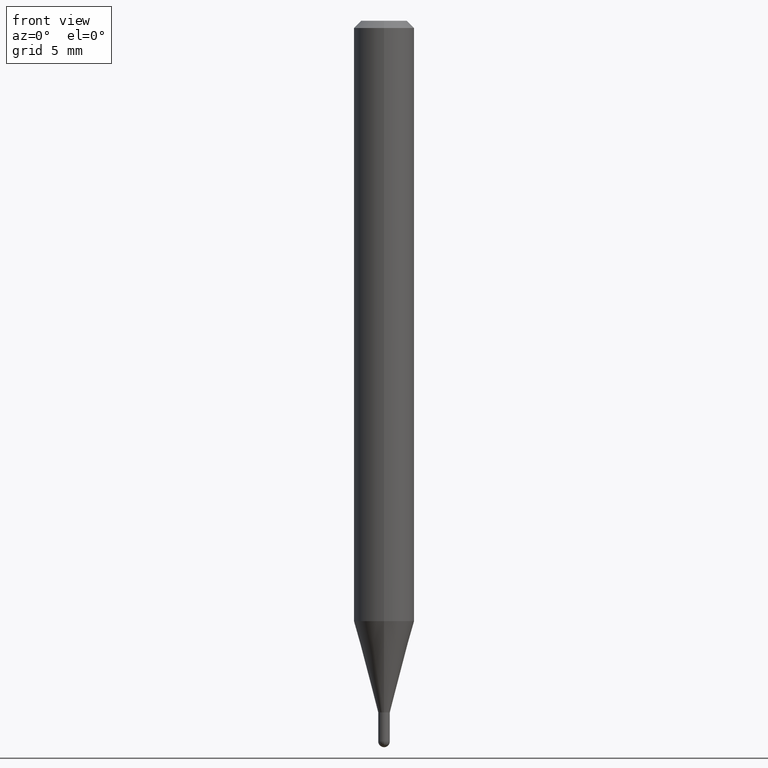
[diagram: clean part render]
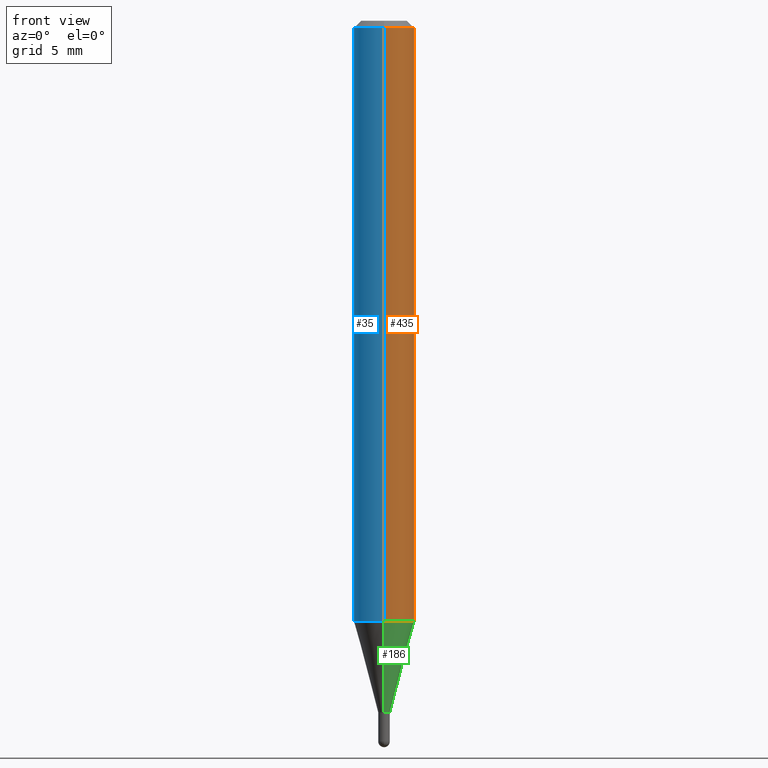
[diagram: same view with three faces highlighted in distinct colors, each labeled with its STEP entity id]
A machine part, front view with three faces highlighted in distinct colors.
Their STEP definitions:

[orange] entity #435 — the highlighted cylindrical surface (edge-blend (fillet) strip) has radius 1.5875 mm, axis along (-0, 0, 1).
#4 = LINE ( 'NONE', #121, #234 ) ;
#13 = EDGE_LOOP ( 'NONE', ( #328, #371, #182, #133 ) ) ;
#46 = VERTEX_POINT ( 'NONE', #309 ) ;
#55 = CARTESIAN_POINT ( 'NONE',  ( 4.440892098500625669E-16, 0.06250000000000000000, -2.182176021476477694E-16 ) ) ;
#56 = EDGE_CURVE ( 'NONE', #46, #325, #498, .T. ) ;
#70 = CARTESIAN_POINT ( 'NONE',  ( 3.668202899737756008E-31, -5.237222451543549696E-17, -0.01500000000000000812 ) ) ;
#72 = DIRECTION ( 'NONE',  ( -6.982962677686265922E-15, -1.000000000000000000, 3.483106191921935554E-15 ) ) ;
#85 = AXIS2_PLACEMENT_3D ( 'NONE', #70, #229, #72 ) ;
#118 = EDGE_CURVE ( 'NONE', #342, #46, #269, .T. ) ;
#121 = CARTESIAN_POINT ( 'NONE',  ( -4.364351673553916201E-16, -0.06250000000000000000, 2.182176021476477694E-16 ) ) ;
#133 = ORIENTED_EDGE ( 'NONE', *, *, #326, .F. ) ;
#154 = CARTESIAN_POINT ( 'NONE',  ( -4.364351673553613969E-16, -0.06250000000000434375, -1.239531434217777450 ) ) ;
#163 = CARTESIAN_POINT ( 'NONE',  ( 0.000000000000000000, 0.000000000000000000, 0.000000000000000000 ) ) ;
#167 = VERTEX_POINT ( 'NONE', #281 ) ;
#182 = ORIENTED_EDGE ( 'NONE', *, *, #439, .F. ) ;
#192 = DIRECTION ( 'NONE',  ( -6.982962677686265922E-15, -1.000000000000000000, 3.491481634362364311E-15 ) ) ;
#197 = FACE_OUTER_BOUND ( 'NONE', #13, .T. ) ;
#217 = DIRECTION ( 'NONE',  ( -2.445468599825169014E-29, 3.491481634362364311E-15, 1.000000000000000000 ) ) ;
#227 = CIRCLE ( 'NONE', #85, 0.06250000000000000000 ) ;
#229 = DIRECTION ( 'NONE',  ( -2.445468599825169014E-29, 3.491481634362364311E-15, 1.000000000000000000 ) ) ;
#234 = VECTOR ( 'NONE', #240, 39.37007874015748143 ) ;
#236 = CYLINDRICAL_SURFACE ( 'NONE', #300, 0.06250000000000000000 ) ;
#240 = DIRECTION ( 'NONE',  ( -2.445468599825169014E-29, 3.491481634362364311E-15, 1.000000000000000000 ) ) ;
#269 = CIRCLE ( 'NONE', #500, 0.06250000000000000000 ) ;
#278 = DIRECTION ( 'NONE',  ( -2.445468599825169014E-29, 3.491481634362364311E-15, 1.000000000000000000 ) ) ;
#281 = CARTESIAN_POINT ( 'NONE',  ( -4.364351673553912750E-16, -0.06250000000000005551, -0.01499999999999979128 ) ) ;
#285 = DIRECTION ( 'NONE',  ( -2.445468599825169014E-29, 3.491481634362364311E-15, 1.000000000000000000 ) ) ;
#300 = AXIS2_PLACEMENT_3D ( 'NONE', #163, #285, #192 ) ;
#306 = VECTOR ( 'NONE', #217, 39.37007874015748143 ) ;
#309 = CARTESIAN_POINT ( 'NONE',  ( 4.440892098500927901E-16, 0.06249999999999567013, -1.239531434217777894 ) ) ;
#321 = CARTESIAN_POINT ( 'NONE',  ( 3.031235200875832251E-29, -4.327801237786212158E-15, -1.239531434217777672 ) ) ;
#325 = VERTEX_POINT ( 'NONE', #358 ) ;
#326 = EDGE_CURVE ( 'NONE', #342, #167, #4, .T. ) ;
#328 = ORIENTED_EDGE ( 'NONE', *, *, #118, .T. ) ;
#342 = VERTEX_POINT ( 'NONE', #154 ) ;
#358 = CARTESIAN_POINT ( 'NONE',  ( 4.440892098500930859E-16, 0.06249999999999995143, -0.01500000000000022669 ) ) ;
#371 = ORIENTED_EDGE ( 'NONE', *, *, #56, .T. ) ;
#435 = ADVANCED_FACE ( 'NONE', ( #197 ), #236, .T. ) ;
#439 = EDGE_CURVE ( 'NONE', #167, #325, #227, .T. ) ;
#498 = LINE ( 'NONE', #55, #306 ) ;
#500 = AXIS2_PLACEMENT_3D ( 'NONE', #321, #278, #510 ) ;
#510 = DIRECTION ( 'NONE',  ( -6.982962677686265922E-15, -1.000000000000000000, 4.370956789862821150E-15 ) ) ;

[blue] entity #35 — the highlighted cylindrical surface (edge-blend (fillet) strip) has radius 1.5875 mm, axis along (-0, 0, 1).
#4 = LINE ( 'NONE', #121, #234 ) ;
#19 = DIRECTION ( 'NONE',  ( -6.982962677686265922E-15, -1.000000000000000000, 3.491481634362364311E-15 ) ) ;
#35 = ADVANCED_FACE ( 'NONE', ( #266 ), #420, .T. ) ;
#44 = ORIENTED_EDGE ( 'NONE', *, *, #326, .T. ) ;
#46 = VERTEX_POINT ( 'NONE', #309 ) ;
#55 = CARTESIAN_POINT ( 'NONE',  ( 4.440892098500625669E-16, 0.06250000000000000000, -2.182176021476477694E-16 ) ) ;
#56 = EDGE_CURVE ( 'NONE', #46, #325, #498, .T. ) ;
#67 = CIRCLE ( 'NONE', #496, 0.06250000000000000000 ) ;
#121 = CARTESIAN_POINT ( 'NONE',  ( -4.364351673553916201E-16, -0.06250000000000000000, 2.182176021476477694E-16 ) ) ;
#149 = DIRECTION ( 'NONE',  ( -2.445468599825169014E-29, 3.491481634362364311E-15, 1.000000000000000000 ) ) ;
#154 = CARTESIAN_POINT ( 'NONE',  ( -4.364351673553613969E-16, -0.06250000000000434375, -1.239531434217777450 ) ) ;
#167 = VERTEX_POINT ( 'NONE', #281 ) ;
#178 = ORIENTED_EDGE ( 'NONE', *, *, #458, .T. ) ;
#185 = CARTESIAN_POINT ( 'NONE',  ( 0.000000000000000000, 0.000000000000000000, 0.000000000000000000 ) ) ;
#212 = AXIS2_PLACEMENT_3D ( 'NONE', #267, #272, #423 ) ;
#217 = DIRECTION ( 'NONE',  ( -2.445468599825169014E-29, 3.491481634362364311E-15, 1.000000000000000000 ) ) ;
#234 = VECTOR ( 'NONE', #240, 39.37007874015748143 ) ;
#240 = DIRECTION ( 'NONE',  ( -2.445468599825169014E-29, 3.491481634362364311E-15, 1.000000000000000000 ) ) ;
#252 = ORIENTED_EDGE ( 'NONE', *, *, #307, .F. ) ;
#266 = FACE_OUTER_BOUND ( 'NONE', #322, .T. ) ;
#267 = CARTESIAN_POINT ( 'NONE',  ( 3.668202899737756008E-31, -5.237222451543549696E-17, -0.01500000000000000812 ) ) ;
#272 = DIRECTION ( 'NONE',  ( -2.445468599825169014E-29, 3.491481634362364311E-15, 1.000000000000000000 ) ) ;
#281 = CARTESIAN_POINT ( 'NONE',  ( -4.364351673553912750E-16, -0.06250000000000005551, -0.01499999999999979128 ) ) ;
#306 = VECTOR ( 'NONE', #217, 39.37007874015748143 ) ;
#307 = EDGE_CURVE ( 'NONE', #325, #167, #464, .T. ) ;
#309 = CARTESIAN_POINT ( 'NONE',  ( 4.440892098500927901E-16, 0.06249999999999567013, -1.239531434217777894 ) ) ;
#322 = EDGE_LOOP ( 'NONE', ( #340, #178, #44, #252 ) ) ;
#325 = VERTEX_POINT ( 'NONE', #358 ) ;
#326 = EDGE_CURVE ( 'NONE', #342, #167, #4, .T. ) ;
#340 = ORIENTED_EDGE ( 'NONE', *, *, #56, .F. ) ;
#342 = VERTEX_POINT ( 'NONE', #154 ) ;
#354 = DIRECTION ( 'NONE',  ( -2.445468599825169014E-29, 3.491481634362364311E-15, 1.000000000000000000 ) ) ;
#358 = CARTESIAN_POINT ( 'NONE',  ( 4.440892098500930859E-16, 0.06249999999999995143, -0.01500000000000022669 ) ) ;
#388 = CARTESIAN_POINT ( 'NONE',  ( 3.031235200875832251E-29, -4.327801237786212158E-15, -1.239531434217777672 ) ) ;
#397 = DIRECTION ( 'NONE',  ( -6.982962677686265922E-15, -1.000000000000000000, 4.370956789862821150E-15 ) ) ;
#420 = CYLINDRICAL_SURFACE ( 'NONE', #495, 0.06250000000000000000 ) ;
#423 = DIRECTION ( 'NONE',  ( -6.982962677686265922E-15, -1.000000000000000000, 3.483106191921935554E-15 ) ) ;
#458 = EDGE_CURVE ( 'NONE', #46, #342, #67, .T. ) ;
#464 = CIRCLE ( 'NONE', #212, 0.06250000000000000000 ) ;
#495 = AXIS2_PLACEMENT_3D ( 'NONE', #185, #149, #19 ) ;
#496 = AXIS2_PLACEMENT_3D ( 'NONE', #388, #354, #397 ) ;
#498 = LINE ( 'NONE', #55, #306 ) ;

[green] entity #186 — the highlighted conical surface has half-angle 15 deg.
#7 = ORIENTED_EDGE ( 'NONE', *, *, #118, .F. ) ;
#36 = DIRECTION ( 'NONE',  ( 1.839019923739649619E-15, 0.2588190451025318972, 0.9659258262890650926 ) ) ;
#46 = VERTEX_POINT ( 'NONE', #309 ) ;
#52 = CARTESIAN_POINT ( 'NONE',  ( -8.379555213219975405E-17, -0.01200000000000491125, -1.428000000000000158 ) ) ;
#71 = DIRECTION ( 'NONE',  ( -2.445468599825169014E-29, 3.491481634362364311E-15, 1.000000000000000000 ) ) ;
#104 = CARTESIAN_POINT ( 'NONE',  ( 3.492129160550341330E-29, -4.985835773869456367E-15, -1.428000000000000158 ) ) ;
#118 = EDGE_CURVE ( 'NONE', #342, #46, #269, .T. ) ;
#124 = EDGE_LOOP ( 'NONE', ( #491, #224, #7, #418 ) ) ;
#152 = CONICAL_SURFACE ( 'NONE', #319, 0.01199999999999992566, 0.2617993877991575125 ) ;
#154 = CARTESIAN_POINT ( 'NONE',  ( -4.364351673553613969E-16, -0.06250000000000434375, -1.239531434217777450 ) ) ;
#156 = CARTESIAN_POINT ( 'NONE',  ( -8.379555213219975405E-17, -0.01200000000000491125, -1.428000000000000158 ) ) ;
#181 = CIRCLE ( 'NONE', #402, 0.01199999999999992566 ) ;
#186 = ADVANCED_FACE ( 'NONE', ( #468 ), #152, .T. ) ;
#207 = VERTEX_POINT ( 'NONE', #459 ) ;
#219 = EDGE_CURVE ( 'NONE', #258, #207, #181, .T. ) ;
#221 = VECTOR ( 'NONE', #394, 39.37007874015748854 ) ;
#223 = DIRECTION ( 'NONE',  ( -2.445468599825169014E-29, 3.491481634362364311E-15, 1.000000000000000000 ) ) ;
#224 = ORIENTED_EDGE ( 'NONE', *, *, #346, .T. ) ;
#258 = VERTEX_POINT ( 'NONE', #52 ) ;
#269 = CIRCLE ( 'NONE', #500, 0.06250000000000000000 ) ;
#275 = CARTESIAN_POINT ( 'NONE',  ( 3.492129160550341330E-29, -4.985835773869456367E-15, -1.428000000000000158 ) ) ;
#278 = DIRECTION ( 'NONE',  ( -2.445468599825169014E-29, 3.491481634362364311E-15, 1.000000000000000000 ) ) ;
#282 = LINE ( 'NONE', #156, #221 ) ;
#283 = LINE ( 'NONE', #483, #421 ) ;
#309 = CARTESIAN_POINT ( 'NONE',  ( 4.440892098500927901E-16, 0.06249999999999567013, -1.239531434217777894 ) ) ;
#319 = AXIS2_PLACEMENT_3D ( 'NONE', #275, #71, #386 ) ;
#321 = CARTESIAN_POINT ( 'NONE',  ( 3.031235200875832251E-29, -4.327801237786212158E-15, -1.239531434217777672 ) ) ;
#342 = VERTEX_POINT ( 'NONE', #154 ) ;
#346 = EDGE_CURVE ( 'NONE', #207, #46, #283, .T. ) ;
#379 = DIRECTION ( 'NONE',  ( -6.982962677686265922E-15, -1.000000000000000000, 0.000000000000000000 ) ) ;
#386 = DIRECTION ( 'NONE',  ( -6.982962677686265922E-15, -1.000000000000000000, 0.000000000000000000 ) ) ;
#394 = DIRECTION ( 'NONE',  ( -1.807323732225379049E-15, -0.2588190451025252359, 0.9659258262890670910 ) ) ;
#402 = AXIS2_PLACEMENT_3D ( 'NONE', #104, #223, #379 ) ;
#418 = ORIENTED_EDGE ( 'NONE', *, *, #482, .F. ) ;
#421 = VECTOR ( 'NONE', #36, 39.37007874015748854 ) ;
#459 = CARTESIAN_POINT ( 'NONE',  ( 2.646771690706697990E-16, 0.01199999999999494006, -1.428000000000000158 ) ) ;
#468 = FACE_OUTER_BOUND ( 'NONE', #124, .T. ) ;
#482 = EDGE_CURVE ( 'NONE', #258, #342, #282, .T. ) ;
#483 = CARTESIAN_POINT ( 'NONE',  ( 8.526512829124640116E-17, 0.01199999999999494006, -1.428000000000000158 ) ) ;
#491 = ORIENTED_EDGE ( 'NONE', *, *, #219, .T. ) ;
#500 = AXIS2_PLACEMENT_3D ( 'NONE', #321, #278, #510 ) ;
#510 = DIRECTION ( 'NONE',  ( -6.982962677686265922E-15, -1.000000000000000000, 4.370956789862821150E-15 ) ) ;